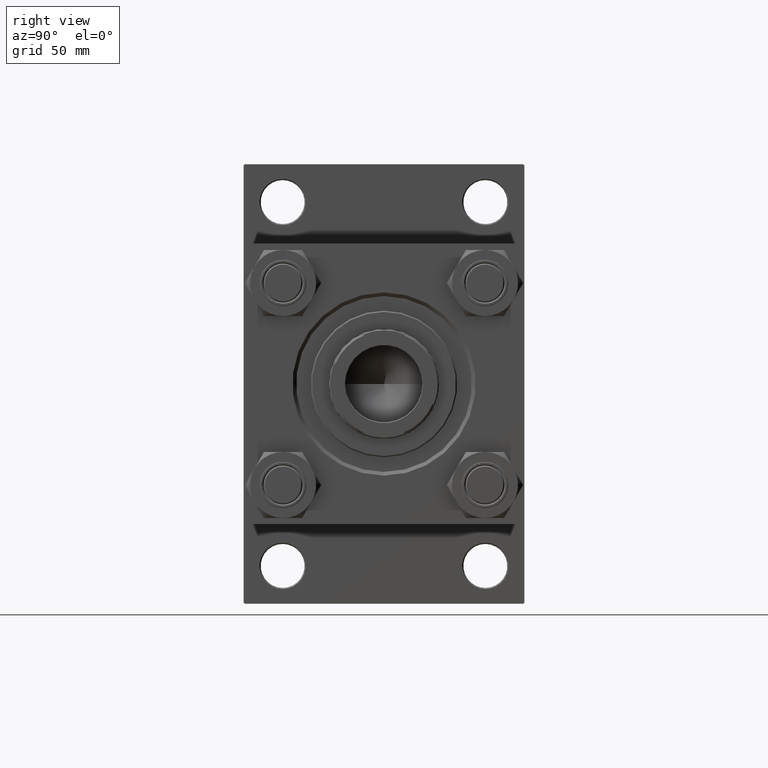
[diagram: clean part render]
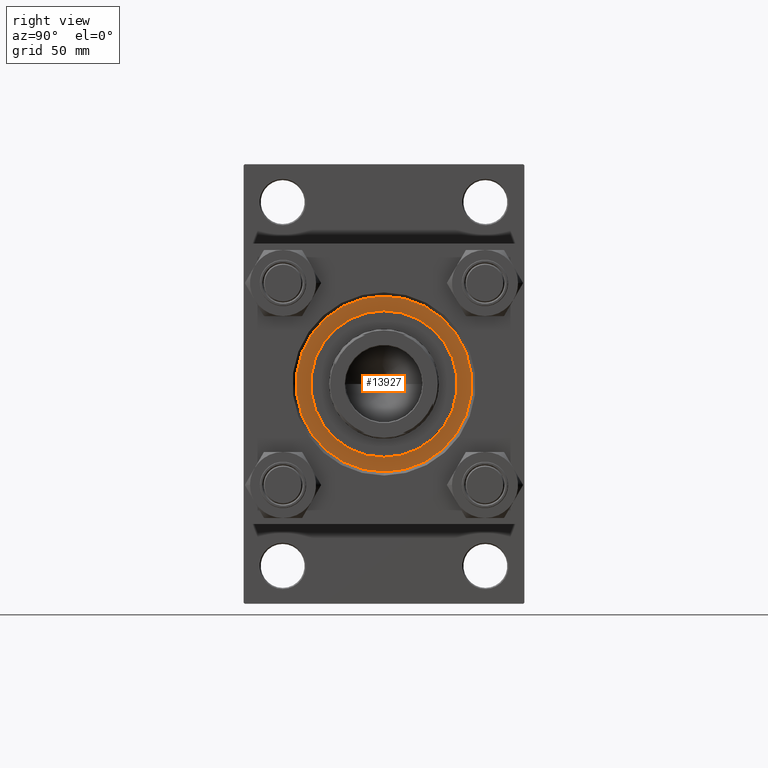
[diagram: same view with one face highlighted and labeled with its STEP entity id]
A machine part, right view. The second image highlights one B-rep face of the part: STEP entity #13927.
In plain terms, the highlighted planar face has unit normal (1, 0, 0).
Its self-contained STEP definition (entity closure, byte-faithful):
#33 = ORIENTED_EDGE ( 'NONE', *, *, #3216, .F. ) ;
#466 = DIRECTION ( 'NONE',  ( 0.000000000000000000, 0.000000000000000000, 1.000000000000000000 ) ) ;
#720 = CARTESIAN_POINT ( 'NONE',  ( 0.000000000000000000, 0.000000000000000000, 28.69999999999999929 ) ) ;
#1174 = DIRECTION ( 'NONE',  ( 0.000000000000000000, 0.000000000000000000, 1.000000000000000000 ) ) ;
#1416 = DIRECTION ( 'NONE',  ( 0.000000000000000000, 0.000000000000000000, 1.000000000000000000 ) ) ;
#2156 = DIRECTION ( 'NONE',  ( 1.000000000000000000, 0.000000000000000000, 0.000000000000000000 ) ) ;
#2354 = CARTESIAN_POINT ( 'NONE',  ( 30.00000000000000000, 3.673940397442059178E-15, 28.69999999999999929 ) ) ;
#3216 = EDGE_CURVE ( 'NONE', #36180, #12724, #20048, .T. ) ;
#5000 = FACE_BOUND ( 'NONE', #30278, .T. ) ;
#5722 = CARTESIAN_POINT ( 'NONE',  ( 0.000000000000000000, 0.000000000000000000, 28.69999999999999929 ) ) ;
#7255 = DIRECTION ( 'NONE',  ( 0.000000000000000000, 0.000000000000000000, 1.000000000000000000 ) ) ;
#7989 = EDGE_CURVE ( 'NONE', #42939, #20300, #24979, .T. ) ;
#10308 = CARTESIAN_POINT ( 'NONE',  ( -36.00000000000000000, 0.000000000000000000, 28.69999999999999929 ) ) ;
#10310 = AXIS2_PLACEMENT_3D ( 'NONE', #14268, #45361, #46557 ) ;
#12724 = VERTEX_POINT ( 'NONE', #2354 ) ;
#13927 = ADVANCED_FACE ( 'NONE', ( #5000, #28946 ), #36101, .T. ) ;
#14268 = CARTESIAN_POINT ( 'NONE',  ( 0.000000000000000000, 0.000000000000000000, 28.69999999999999929 ) ) ;
#15757 = CARTESIAN_POINT ( 'NONE',  ( 36.00000000000000000, 4.408728476930470856E-15, 28.69999999999999929 ) ) ;
#16693 = CIRCLE ( 'NONE', #33795, 30.00000000000000000 ) ;
#17592 = ORIENTED_EDGE ( 'NONE', *, *, #24020, .T. ) ;
#17778 = AXIS2_PLACEMENT_3D ( 'NONE', #29442, #1416, #2156 ) ;
#19586 = DIRECTION ( 'NONE',  ( 1.000000000000000000, 0.000000000000000000, 0.000000000000000000 ) ) ;
#20048 = CIRCLE ( 'NONE', #27354, 30.00000000000000000 ) ;
#20300 = VERTEX_POINT ( 'NONE', #15757 ) ;
#24020 = EDGE_CURVE ( 'NONE', #20300, #42939, #31631, .T. ) ;
#24979 = CIRCLE ( 'NONE', #10310, 36.00000000000000000 ) ;
#26196 = ORIENTED_EDGE ( 'NONE', *, *, #7989, .T. ) ;
#27354 = AXIS2_PLACEMENT_3D ( 'NONE', #720, #466, #19586 ) ;
#28215 = DIRECTION ( 'NONE',  ( 1.000000000000000000, 0.000000000000000000, -0.000000000000000000 ) ) ;
#28946 = FACE_OUTER_BOUND ( 'NONE', #30818, .T. ) ;
#29442 = CARTESIAN_POINT ( 'NONE',  ( 0.000000000000000000, 0.000000000000000000, 28.69999999999999929 ) ) ;
#30278 = EDGE_LOOP ( 'NONE', ( #33, #40612 ) ) ;
#30818 = EDGE_LOOP ( 'NONE', ( #26196, #17592 ) ) ;
#31631 = CIRCLE ( 'NONE', #17778, 36.00000000000000000 ) ;
#33795 = AXIS2_PLACEMENT_3D ( 'NONE', #49339, #7255, #34042 ) ;
#34042 = DIRECTION ( 'NONE',  ( 1.000000000000000000, 0.000000000000000000, 0.000000000000000000 ) ) ;
#36101 = PLANE ( 'NONE',  #43075 ) ;
#36180 = VERTEX_POINT ( 'NONE', #37063 ) ;
#37063 = CARTESIAN_POINT ( 'NONE',  ( -30.00000000000000000, 0.000000000000000000, 28.69999999999999929 ) ) ;
#40612 = ORIENTED_EDGE ( 'NONE', *, *, #47301, .F. ) ;
#42939 = VERTEX_POINT ( 'NONE', #10308 ) ;
#43075 = AXIS2_PLACEMENT_3D ( 'NONE', #5722, #1174, #28215 ) ;
#45361 = DIRECTION ( 'NONE',  ( 0.000000000000000000, 0.000000000000000000, 1.000000000000000000 ) ) ;
#46557 = DIRECTION ( 'NONE',  ( 1.000000000000000000, 0.000000000000000000, 0.000000000000000000 ) ) ;
#47301 = EDGE_CURVE ( 'NONE', #12724, #36180, #16693, .T. ) ;
#49339 = CARTESIAN_POINT ( 'NONE',  ( 0.000000000000000000, 0.000000000000000000, 28.69999999999999929 ) ) ;